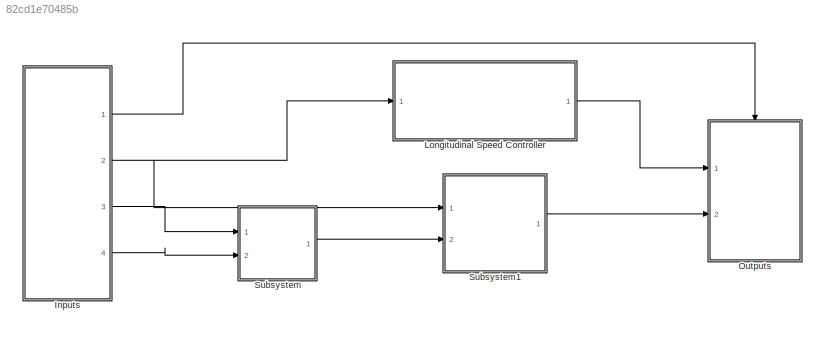
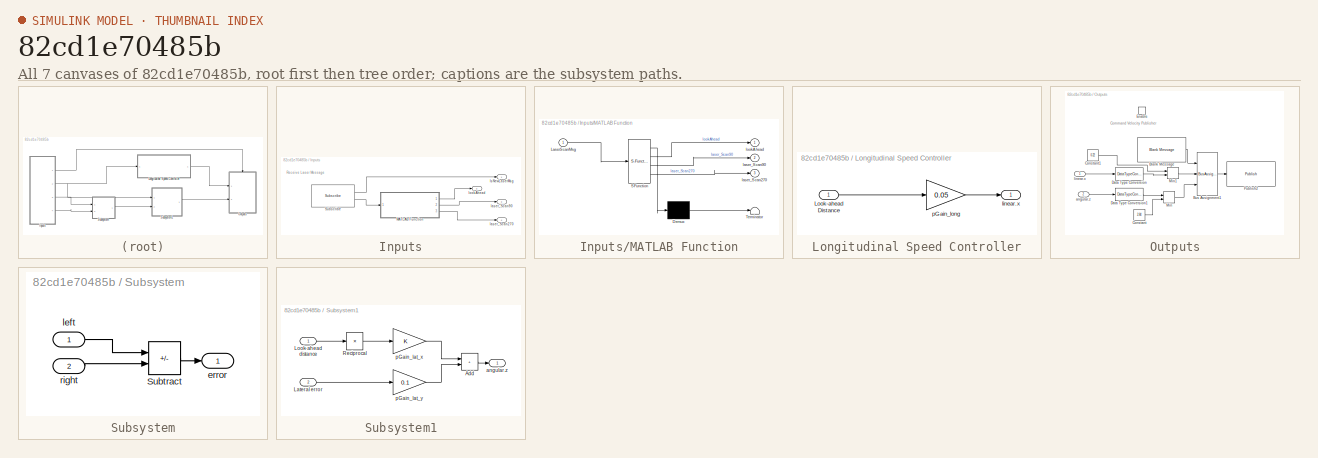
[diagram: thumbnail index - all 7 canvases of the model, root first then tree order]
MODEL slx_82cd1e70485b
KIND model
CONFIG AbsTol = auto
CONFIG EnableMultiTasking = on
CONFIG FixedStep = 0.05
CONFIG MaxStep = auto
CONFIG MinStep = auto
CONFIG RelTol = 1e-3
CONFIG SampleTimeConstraint = Unconstrained
CONFIG SolverName = ode3
CONFIG StartTime = 0.0
CONFIG StopTime = inf
BLOCK [SubSystem] Inputs
  Ports = [0, 4]
  RequestExecContextInheritance = off
BLOCK [Outport] Inputs/IsNewLaserMsg
  VectorParamsAs1DForOutWhenUnconnected = off
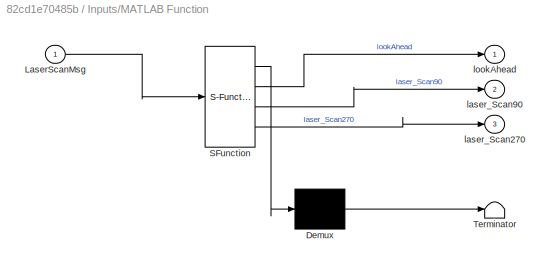
BLOCK [SubSystem] Inputs/MATLAB Function
  ErrorFcn = Stateflow.Translate.translate
  PermitHierarchicalResolution = ExplicitOnly
  Ports = [1, 3]
  RequestExecContextInheritance = off
  SFBlockType = MATLAB Function
  TreatAsAtomicUnit = on
BLOCK [Demux] Inputs/MATLAB Function/ Demux 
  Outputs = 1
  Ports = [1, 1]
BLOCK [S-Function] Inputs/MATLAB Function/ SFunction 
  EnableBusSupport = on
  FunctionName = sf_sfun
  PortCounts = [1 4]
  Ports = [1, 4]
  SFcnIsStateOwnerBlock = off
  SFunctionDeploymentMode = off
  Tag = Stateflow S-Function 5
BLOCK [Terminator] Inputs/MATLAB Function/ Terminator 
BLOCK [Inport] Inputs/MATLAB Function/LaserScanMsg
BLOCK [Outport] Inputs/MATLAB Function/laser_Scan270
  Port = 3
BLOCK [Outport] Inputs/MATLAB Function/laser_Scan90
  Port = 2
  VectorParamsAs1DForOutWhenUnconnected = off
BLOCK [Outport] Inputs/MATLAB Function/lookAhead
  VectorParamsAs1DForOutWhenUnconnected = off
BLOCK [Reference] Inputs/Subscribe  REF=robotlib/Subscribe
  Ports = [0, 2]
  SourceBlock = robotlib/Subscribe
  SourceProductBaseCode = RR
  SourceType = ROS Subscribe
BLOCK [Outport] Inputs/laser_Scan270
  Port = 4
  VectorParamsAs1DForOutWhenUnconnected = off
BLOCK [Outport] Inputs/laser_Scan90
  Port = 3
  VectorParamsAs1DForOutWhenUnconnected = off
BLOCK [Outport] Inputs/lookAhead
  Port = 2
  VectorParamsAs1DForOutWhenUnconnected = off
BLOCK [SubSystem] Longitudinal Speed Controller
  Ports = [1, 1]
  RequestExecContextInheritance = off
BLOCK [Inport] Longitudinal Speed Controller/Look-ahead Distance
BLOCK [Outport] Longitudinal Speed Controller/linear.x
BLOCK [Gain] Longitudinal Speed Controller/pGain_long
  Gain = 0.05
  OutDataTypeStr = single
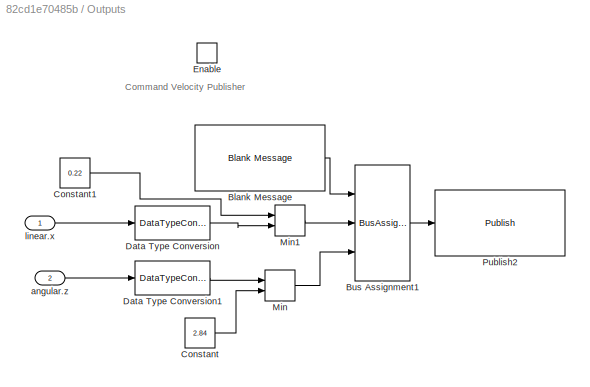
BLOCK [SubSystem] Outputs
  Ports = [2, 0, 1]
  RequestExecContextInheritance = off
BLOCK [Reference] Outputs/Blank Message  REF=robotlib/Blank Message
  Ports = [0, 1]
  SourceBlock = robotlib/Blank Message
  SourceProductBaseCode = RR
  SourceType = ROS Blank Message
BLOCK [BusAssignment] Outputs/Bus Assignment1
  AssignedSignals = Linear.X,Angular.Z
  DialogController = Simulink.DDGSource_BusAssignment
  Ports = [3, 1]
BLOCK [Constant] Outputs/Constant
  Value = 2.84
BLOCK [Constant] Outputs/Constant1
  Value = 0.22
BLOCK [DataTypeConversion] Outputs/Data Type Conversion
  OutDataTypeStr = double
  RndMeth = Floor
  SaturateOnIntegerOverflow = off
BLOCK [DataTypeConversion] Outputs/Data Type Conversion1
  OutDataTypeStr = double
  RndMeth = Floor
  SaturateOnIntegerOverflow = off
BLOCK [EnablePort] Outputs/Enable
  Ports = []
BLOCK [MinMax] Outputs/Min
  Inputs = 2
  Ports = [2, 1]
BLOCK [MinMax] Outputs/Min1
  Inputs = 2
  Ports = [2, 1]
BLOCK [Reference] Outputs/Publish2  REF=robotlib/Publish
  AttributesFormatString = %<messageType>
  Ports = [1]
  SourceBlock = robotlib/Publish
  SourceProductBaseCode = RR
  SourceType = ROS Publish
BLOCK [Inport] Outputs/angular.z
  Port = 2
BLOCK [Inport] Outputs/linear.x
BLOCK [SubSystem] Subsystem
  Ports = [2, 1]
  RequestExecContextInheritance = off
BLOCK [Sum] Subsystem/Subtract
  IconShape = rectangular
  Inputs = +-
  Ports = [2, 1]
BLOCK [Outport] Subsystem/error
BLOCK [Inport] Subsystem/left
BLOCK [Inport] Subsystem/right
  Port = 2
BLOCK [SubSystem] Subsystem1
  Ports = [2, 1]
  RequestExecContextInheritance = off
BLOCK [Sum] Subsystem1/Add
  IconShape = rectangular
  Ports = [2, 1]
BLOCK [Inport] Subsystem1/Lateral error
  Port = 2
BLOCK [Inport] Subsystem1/Look-ahead distance
BLOCK [Product] Subsystem1/Reciprocal
  Inputs = /
  Ports = [1, 1]
BLOCK [Outport] Subsystem1/angular.z
BLOCK [Gain] Subsystem1/pGain_lat_x
  OutDataTypeStr = single
BLOCK [Gain] Subsystem1/pGain_lat_y
  Gain = 0.1
  OutDataTypeStr = single
ANNOTATION Inputs: Receive Laser Message
ANNOTATION Outputs: Command Velocity Publisher
LINE Inputs/MATLAB Function:1 -> Inputs/lookAhead:1
LINE Inputs/MATLAB Function:2 -> Inputs/laser_Scan90:1
LINE Inputs/MATLAB Function:3 -> Inputs/laser_Scan270:1
LINE Inputs/Subscribe:1 -> Inputs/IsNewLaserMsg:1
LINE Inputs/Subscribe:2 -> Inputs/MATLAB Function:1
LINE Inputs:1 -> Outputs:enable
NET Inputs:2 -> Longitudinal Speed Controller:1, Subsystem1:1
LINE Inputs:3 -> Subsystem:1
LINE Inputs:4 -> Subsystem:2
LINE Longitudinal Speed Controller/Look-ahead Distance:1 -> Longitudinal Speed Controller/pGain_long:1
LINE Longitudinal Speed Controller/pGain_long:1 -> Longitudinal Speed Controller/linear.x:1
LINE Longitudinal Speed Controller:1 -> Outputs:1
LINE Outputs/Blank Message:1 -> Outputs/Bus Assignment1:1
LINE Outputs/Bus Assignment1:1 -> Outputs/Publish2:1
LINE Outputs/Constant1:1 -> Outputs/Min1:1
LINE Outputs/Constant:1 -> Outputs/Min:2
LINE Outputs/Data Type Conversion1:1 -> Outputs/Min:1
LINE Outputs/Data Type Conversion:1 -> Outputs/Min1:2
LINE Outputs/Min1:1 -> Outputs/Bus Assignment1:2
LINE Outputs/Min:1 -> Outputs/Bus Assignment1:3
LINE Outputs/angular.z:1 -> Outputs/Data Type Conversion1:1
LINE Outputs/linear.x:1 -> Outputs/Data Type Conversion:1
LINE Subsystem/Subtract:1 -> Subsystem/error:1
LINE Subsystem/left:1 -> Subsystem/Subtract:1
LINE Subsystem/right:1 -> Subsystem/Subtract:2
LINE Subsystem1/Add:1 -> Subsystem1/angular.z:1
LINE Subsystem1/Lateral error:1 -> Subsystem1/pGain_lat_y:1
LINE Subsystem1/Look-ahead distance:1 -> Subsystem1/Reciprocal:1
LINE Subsystem1/Reciprocal:1 -> Subsystem1/pGain_lat_x:1
LINE Subsystem1/pGain_lat_x:1 -> Subsystem1/Add:1
LINE Subsystem1/pGain_lat_y:1 -> Subsystem1/Add:2
LINE Subsystem1:1 -> Outputs:2
LINE Subsystem:1 -> Subsystem1:2
note: NET lines group one-source signal fan-out (src -> all destinations, sorted); 1:1 wires keep LINE
CHART Inputs/MATLAB Function states=1 transitions=1
  STATE_LABEL 'eML_blk_kernel()'
  STATE_LABEL 'SCRIPT:\nfunction [lookAhead, laser_Scan90, laser_Scan270] = ExtractRangeData(LaserScanMsg)\n%#codegen\n\n% Extract Range information\nwindow = 5;\nlookAhead = min(3.5,(sum(LaserScanMsg.Ranges(1:10)+LaserScanMsg.Ranges(351:360))/20));\nlaser_Scan90 = min(3.5,(sum(LaserScanMsg.Ranges(90-window:90+window)/20)));\nlaser_Scan270 = min(3.5,(sum(LaserScanMsg.Ranges(269-window:269+window)/(2*window))));'
CHART  states=0 transitions=0
